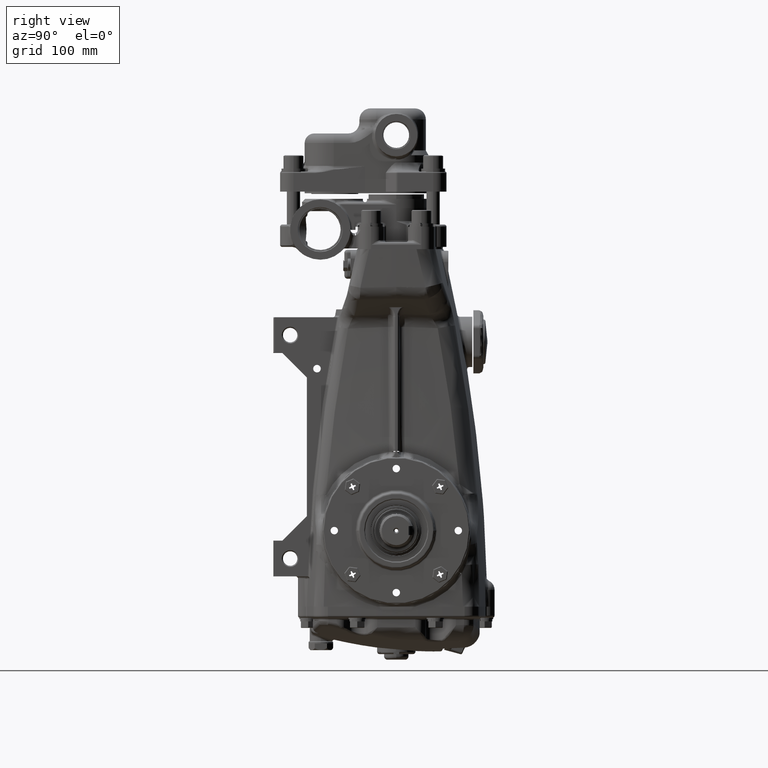
[diagram: clean part render]
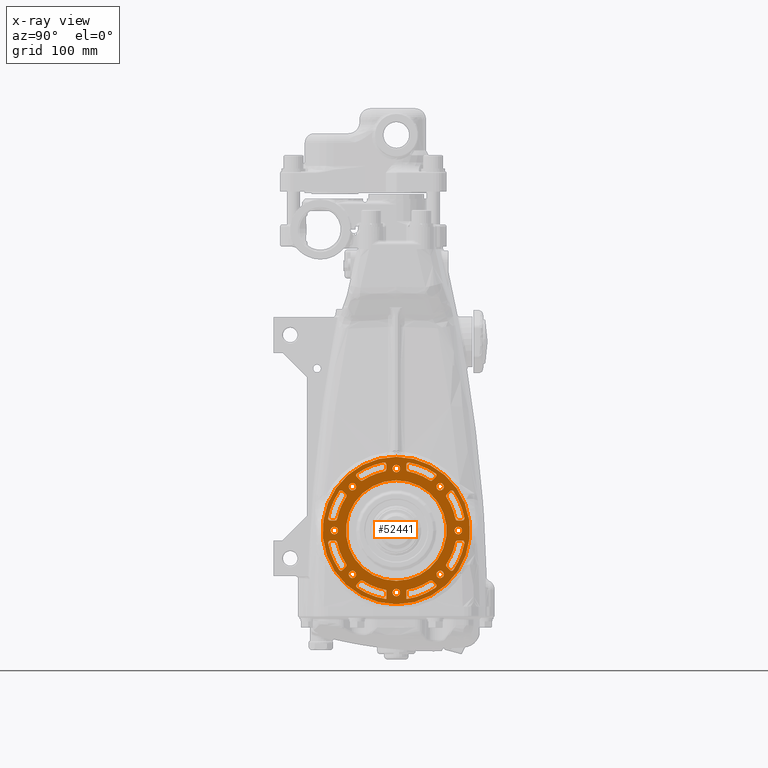
[diagram: x-ray — body ghosted, one internal face saturated and labeled with its STEP entity id]
A machine part, right view, then the same camera in x-ray: the body is ghosted and one INTERNAL B-rep face — a face not visible from any outside direction — is saturated and labeled: STEP entity #52441.
In plain terms, the highlighted planar face has unit normal (1, 0, -0).
Its self-contained STEP definition (entity closure, byte-faithful):
#12 = DIRECTION ( 'NONE',  ( 1.000000000000000000, -0.000000000000000000, 9.899117423955728400E-17 ) ) ;
#23 = DIRECTION ( 'NONE',  ( 0.000000000000000000, -0.7071067811865479058, -0.7071067811865470176 ) ) ;
#32 = EDGE_CURVE ( 'NONE', #109543, #37305, #24876, .T. ) ;
#167 = DIRECTION ( 'NONE',  ( 0.000000000000000000, -5.204170427930416550E-15, -1.000000000000000000 ) ) ;
#215 = VECTOR ( 'NONE', #54547, 39.37007874015748854 ) ;
#721 = ORIENTED_EDGE ( 'NONE', *, *, #32, .T. ) ;
#727 = CIRCLE ( 'NONE', #110268, 1.771653543307086798 ) ;
#1166 = VERTEX_POINT ( 'NONE', #91307 ) ;
#1256 = DIRECTION ( 'NONE',  ( -1.000000000000000000, -0.000000000000000000, -9.899117423955728400E-17 ) ) ;
#1596 = CARTESIAN_POINT ( 'NONE',  ( 4.448818897637796255, 1.545056155742267512, 1.545056155742250636 ) ) ;
#2016 = AXIS2_PLACEMENT_3D ( 'NONE', #105163, #43399, #34272 ) ;
#2068 = EDGE_CURVE ( 'NONE', #66689, #1166, #14310, .T. ) ;
#2490 = VERTEX_POINT ( 'NONE', #65417 ) ;
#2759 = DIRECTION ( 'NONE',  ( 0.000000000000000000, 0.000000000000000000, -1.000000000000000000 ) ) ;
#2987 = AXIS2_PLACEMENT_3D ( 'NONE', #91050, #40661, #12729 ) ;
#3040 = ORIENTED_EDGE ( 'NONE', *, *, #56221, .T. ) ;
#3227 = VERTEX_POINT ( 'NONE', #58942 ) ;
#3236 = ORIENTED_EDGE ( 'NONE', *, *, #108837, .T. ) ;
#3242 = LINE ( 'NONE', #63848, #76802 ) ;
#3276 = CIRCLE ( 'NONE', #68994, 2.125984251968503713 ) ;
#3459 = AXIS2_PLACEMENT_3D ( 'NONE', #67452, #109813, #40572 ) ;
#3550 = CARTESIAN_POINT ( 'NONE',  ( 4.448818897637796255, -2.096248742043170576, 0.3543307086614185808 ) ) ;
#3696 = EDGE_CURVE ( 'NONE', #6234, #31853, #60837, .T. ) ;
#3734 = VERTEX_POINT ( 'NONE', #40141 ) ;
#4074 = VERTEX_POINT ( 'NONE', #89841 ) ;
#4086 = CIRCLE ( 'NONE', #89964, 0.07874015748031502893 ) ;
#4231 = ORIENTED_EDGE ( 'NONE', *, *, #18039, .T. ) ;
#4312 = EDGE_CURVE ( 'NONE', #7281, #70357, #108248, .T. ) ;
#4521 = VERTEX_POINT ( 'NONE', #95364 ) ;
#4562 = CARTESIAN_POINT ( 'NONE',  ( 4.448818897637796255, 1.335792870641475893, 1.948247563007773575 ) ) ;
#4708 = DIRECTION ( 'NONE',  ( 0.000000000000000000, -3.469446951953614189E-15, -1.000000000000000000 ) ) ;
#4740 = CARTESIAN_POINT ( 'NONE',  ( 4.448818897637796255, 0.000000000000000000, 0.000000000000000000 ) ) ;
#5070 = VECTOR ( 'NONE', #105966, 39.37007874015748143 ) ;
#5159 = CARTESIAN_POINT ( 'NONE',  ( 4.448818897637796255, 2.161772269809818514, 0.4330708661417335681 ) ) ;
#5262 = FACE_BOUND ( 'NONE', #90158, .T. ) ;
#5287 = CARTESIAN_POINT ( 'NONE',  ( 4.448818897637796255, -1.834831177546701886, 1.222376485180416417 ) ) ;
#5419 = DIRECTION ( 'NONE',  ( 0.000000000000000000, -3.469446951953617344E-15, -1.000000000000000000 ) ) ;
#5514 = DIRECTION ( 'NONE',  ( 0.000000000000000000, 0.000000000000000000, 1.000000000000000000 ) ) ;
#5537 = ORIENTED_EDGE ( 'NONE', *, *, #67426, .T. ) ;
#5856 = ORIENTED_EDGE ( 'NONE', *, *, #94889, .T. ) ;
#6207 = CIRCLE ( 'NONE', #106653, 0.07874015748031502893 ) ;
#6234 = VERTEX_POINT ( 'NONE', #77175 ) ;
#6511 = DIRECTION ( 'NONE',  ( -1.000000000000000000, -0.000000000000000000, 2.542649619626401295E-33 ) ) ;
#6852 = CARTESIAN_POINT ( 'NONE',  ( 4.448818897637796255, 1.380319299662858157, 2.013189148441365983 ) ) ;
#7034 = ORIENTED_EDGE ( 'NONE', *, *, #92291, .T. ) ;
#7281 = VERTEX_POINT ( 'NONE', #38889 ) ;
#7407 = DIRECTION ( 'NONE',  ( 0.000000000000000000, -0.000000000000000000, -1.000000000000000000 ) ) ;
#7496 = DIRECTION ( 'NONE',  ( -1.000000000000000000, -0.000000000000000000, 2.542649619626401295E-33 ) ) ;
#7705 = CARTESIAN_POINT ( 'NONE',  ( 4.448818897637796255, -1.834831177546705216, -1.222376485180409755 ) ) ;
#8301 = EDGE_CURVE ( 'NONE', #3734, #12363, #71956, .T. ) ;
#8403 = EDGE_LOOP ( 'NONE', ( #20770, #93234 ) ) ;
#8465 = ORIENTED_EDGE ( 'NONE', *, *, #33996, .T. ) ;
#8572 = DIRECTION ( 'NONE',  ( 0.000000000000000000, 0.000000000000000000, 1.000000000000000000 ) ) ;
#8953 = CARTESIAN_POINT ( 'NONE',  ( 4.448818897637796255, 0.000000000000000000, 0.000000000000000000 ) ) ;
#9000 = EDGE_CURVE ( 'NONE', #86611, #50180, #70883, .T. ) ;
#9198 = CARTESIAN_POINT ( 'NONE',  ( 4.448818897637796255, -1.278054184486430822, -1.779153478240682373 ) ) ;
#9356 = VERTEX_POINT ( 'NONE', #77034 ) ;
#9377 = VERTEX_POINT ( 'NONE', #50160 ) ;
#9553 = AXIS2_PLACEMENT_3D ( 'NONE', #34273, #104041, #111494 ) ;
#9787 = CIRCLE ( 'NONE', #64523, 0.07874015748031495954 ) ;
#10145 = CIRCLE ( 'NONE', #95934, 2.440944881889763440 ) ;
#10637 = CARTESIAN_POINT ( 'NONE',  ( 4.448818897637796255, -2.322167260324193627, 0.3543307086614186918 ) ) ;
#10890 = AXIS2_PLACEMENT_3D ( 'NONE', #48946, #76384, #5514 ) ;
#10996 = VERTEX_POINT ( 'NONE', #11100 ) ;
#11088 = CARTESIAN_POINT ( 'NONE',  ( 4.448818897637796255, 0.000000000000000000, -4.975950889780015573E-33 ) ) ;
#11100 = CARTESIAN_POINT ( 'NONE',  ( 4.448818897637796255, 1.545056155742267290, -1.675902612435164141 ) ) ;
#11182 = ORIENTED_EDGE ( 'NONE', *, *, #75502, .T. ) ;
#11308 = CIRCLE ( 'NONE', #35019, 2.125984251968503269 ) ;
#11768 = CIRCLE ( 'NONE', #64691, 0.07874015748031502893 ) ;
#12207 = VERTEX_POINT ( 'NONE', #109255 ) ;
#12363 = VERTEX_POINT ( 'NONE', #106298 ) ;
#12378 = EDGE_LOOP ( 'NONE', ( #11182, #42176 ) ) ;
#12710 = VERTEX_POINT ( 'NONE', #75764 ) ;
#12729 = DIRECTION ( 'NONE',  ( 0.000000000000000000, 0.000000000000000000, 1.000000000000000000 ) ) ;
#13130 = VERTEX_POINT ( 'NONE', #93353 ) ;
#13251 = AXIS2_PLACEMENT_3D ( 'NONE', #75339, #22782, #66766 ) ;
#13322 = DIRECTION ( 'NONE',  ( -1.000000000000000000, -0.000000000000000000, 2.542649619626401295E-33 ) ) ;
#13421 = DIRECTION ( 'NONE',  ( 1.000000000000000000, -0.000000000000000000, -2.542649619626401295E-33 ) ) ;
#13565 = CIRCLE ( 'NONE', #81110, 0.1308464566929133932 ) ;
#13938 = DIRECTION ( 'NONE',  ( 0.000000000000000000, 0.000000000000000000, -1.000000000000000000 ) ) ;
#13966 = VECTOR ( 'NONE', #97763, 39.37007874015748854 ) ;
#14101 = CARTESIAN_POINT ( 'NONE',  ( 4.448818897637796255, -2.161772269809818070, -0.4330708661417315697 ) ) ;
#14244 = EDGE_CURVE ( 'NONE', #93493, #32721, #104492, .T. ) ;
#14310 = CIRCLE ( 'NONE', #30671, 0.07874015748031502893 ) ;
#14730 = EDGE_CURVE ( 'NONE', #110002, #86611, #110660, .T. ) ;
#14923 = VERTEX_POINT ( 'NONE', #76886 ) ;
#14937 = CARTESIAN_POINT ( 'NONE',  ( 4.448818897637796255, 1.948247563007776906, 1.335792870641471231 ) ) ;
#15344 = CARTESIAN_POINT ( 'NONE',  ( 4.448818897637796255, 0.000000000000000000, 2.315885826771653999 ) ) ;
#15936 = ORIENTED_EDGE ( 'NONE', *, *, #32976, .T. ) ;
#16445 = DIRECTION ( 'NONE',  ( -1.000000000000000000, -0.000000000000000000, 2.542649619626401295E-33 ) ) ;
#16446 = DIRECTION ( 'NONE',  ( 0.000000000000000000, -0.000000000000000000, -1.000000000000000000 ) ) ;
#16630 = CARTESIAN_POINT ( 'NONE',  ( 4.448818897637796255, 2.013189148441373977, -1.380319299662845056 ) ) ;
#16963 = EDGE_CURVE ( 'NONE', #18414, #13130, #33039, .T. ) ;
#17332 = CARTESIAN_POINT ( 'NONE',  ( 4.448818897637796255, -1.545056155742268178, -1.545056155742250192 ) ) ;
#17342 = DIRECTION ( 'NONE',  ( -1.000000000000000000, -0.000000000000000000, -9.899117423955728400E-17 ) ) ;
#17381 = LINE ( 'NONE', #97366, #82208 ) ;
#17384 = CIRCLE ( 'NONE', #33748, 0.07874015748031502893 ) ;
#17419 = DIRECTION ( 'NONE',  ( 0.000000000000000000, 0.000000000000000000, -1.000000000000000000 ) ) ;
#17877 = EDGE_CURVE ( 'NONE', #24424, #111568, #108189, .T. ) ;
#18039 = EDGE_CURVE ( 'NONE', #76089, #56975, #93422, .T. ) ;
#18096 = CARTESIAN_POINT ( 'NONE',  ( 4.448818897637796255, -1.545056155742266846, 1.545056155742252191 ) ) ;
#18414 = VERTEX_POINT ( 'NONE', #52670 ) ;
#19457 = AXIS2_PLACEMENT_3D ( 'NONE', #42533, #32837, #77423 ) ;
#19572 = ORIENTED_EDGE ( 'NONE', *, *, #62007, .T. ) ;
#19828 = DIRECTION ( 'NONE',  ( -1.000000000000000000, -0.000000000000000000, 2.542649619626401295E-33 ) ) ;
#20358 = DIRECTION ( 'NONE',  ( 0.000000000000000000, -3.469446951953611428E-15, -1.000000000000000000 ) ) ;
#20451 = CARTESIAN_POINT ( 'NONE',  ( 4.448818897637796255, -1.178720182138238926, 1.769301492634332673 ) ) ;
#20770 = ORIENTED_EDGE ( 'NONE', *, *, #112071, .T. ) ;
#20827 = LINE ( 'NONE', #98570, #215 ) ;
#20914 = CARTESIAN_POINT ( 'NONE',  ( 4.448818897637796255, 1.178720182138256911, -1.769301492634320017 ) ) ;
#20971 = VECTOR ( 'NONE', #43926, 39.37007874015748854 ) ;
#21096 = ORIENTED_EDGE ( 'NONE', *, *, #38350, .T. ) ;
#21211 = VERTEX_POINT ( 'NONE', #20914 ) ;
#21213 = CARTESIAN_POINT ( 'NONE',  ( 4.448818897637796255, 0.000000000000000000, 0.000000000000000000 ) ) ;
#21545 = DIRECTION ( 'NONE',  ( 0.000000000000000000, 0.7071067811865509034, -0.7071067811865440200 ) ) ;
#21674 = EDGE_CURVE ( 'NONE', #14923, #109757, #85189, .T. ) ;
#21720 = EDGE_CURVE ( 'NONE', #4074, #76522, #110836, .T. ) ;
#21782 = AXIS2_PLACEMENT_3D ( 'NONE', #113074, #105059, #69592 ) ;
#21823 = CARTESIAN_POINT ( 'NONE',  ( 4.448818897637796255, 1.732821347429621683, 1.231722053675370576 ) ) ;
#22426 = FACE_BOUND ( 'NONE', #35329, .T. ) ;
#22437 = DIRECTION ( 'NONE',  ( -1.000000000000000000, -0.000000000000000000, 2.542649619626401295E-33 ) ) ;
#22505 = CIRCLE ( 'NONE', #101030, 0.07874015748031502893 ) ;
#22782 = DIRECTION ( 'NONE',  ( -1.000000000000000000, -0.000000000000000000, 2.542649619626401295E-33 ) ) ;
#22992 = FACE_BOUND ( 'NONE', #36088, .T. ) ;
#23080 = DIRECTION ( 'NONE',  ( 0.000000000000000000, -2.142009898075826297E-16, 1.000000000000000000 ) ) ;
#23274 = DIRECTION ( 'NONE',  ( -1.000000000000000000, -0.000000000000000000, 2.542649619626401295E-33 ) ) ;
#23307 = CARTESIAN_POINT ( 'NONE',  ( 4.448818897637796255, 1.892569863701754285, -1.391470569947490743 ) ) ;
#23549 = FACE_BOUND ( 'NONE', #12378, .T. ) ;
#23666 = CARTESIAN_POINT ( 'NONE',  ( 4.448818897637796255, 0.000000000000000000, -4.975950889780015573E-33 ) ) ;
#23848 = VERTEX_POINT ( 'NONE', #100021 ) ;
#23938 = VERTEX_POINT ( 'NONE', #65673 ) ;
#24067 = CIRCLE ( 'NONE', #27703, 2.125984251968504157 ) ;
#24105 = CARTESIAN_POINT ( 'NONE',  ( 4.448818897637796255, 2.161772269809818070, -0.4330708661417315697 ) ) ;
#24162 = VERTEX_POINT ( 'NONE', #45003 ) ;
#24414 = VERTEX_POINT ( 'NONE', #107905 ) ;
#24424 = VERTEX_POINT ( 'NONE', #71872 ) ;
#24531 = CARTESIAN_POINT ( 'NONE',  ( 4.448818897637796255, 2.084566117316610345, -0.4176040494938125791 ) ) ;
#24682 = FACE_OUTER_BOUND ( 'NONE', #57287, .T. ) ;
#24760 = VERTEX_POINT ( 'NONE', #108897 ) ;
#24793 = CARTESIAN_POINT ( 'NONE',  ( 4.448818897637796255, 1.545056155742267512, 1.414209699049337354 ) ) ;
#24876 = CIRCLE ( 'NONE', #2987, 2.440944881889763884 ) ;
#25082 = VECTOR ( 'NONE', #29801, 39.37007874015748854 ) ;
#25347 = ORIENTED_EDGE ( 'NONE', *, *, #53187, .T. ) ;
#25568 = VERTEX_POINT ( 'NONE', #65453 ) ;
#25771 = EDGE_CURVE ( 'NONE', #56975, #76089, #98243, .T. ) ;
#26308 = CARTESIAN_POINT ( 'NONE',  ( 4.448818897637796255, 2.322167260324193183, -0.3543307086614165824 ) ) ;
#26544 = DIRECTION ( 'NONE',  ( 0.000000000000000000, 0.000000000000000000, 1.000000000000000000 ) ) ;
#26633 = DIRECTION ( 'NONE',  ( 0.000000000000000000, 0.000000000000000000, 1.000000000000000000 ) ) ;
#26677 = ORIENTED_EDGE ( 'NONE', *, *, #103350, .T. ) ;
#26769 = VERTEX_POINT ( 'NONE', #15344 ) ;
#26775 = DIRECTION ( 'NONE',  ( 1.000000000000000000, -0.000000000000000000, 9.899117423955728400E-17 ) ) ;
#26793 = DIRECTION ( 'NONE',  ( -1.000000000000000000, -0.000000000000000000, 2.542649619626401295E-33 ) ) ;
#26840 = EDGE_CURVE ( 'NONE', #74251, #93575, #91133, .T. ) ;
#26974 = VERTEX_POINT ( 'NONE', #61593 ) ;
#26986 = DIRECTION ( 'NONE',  ( -1.000000000000000000, -0.000000000000000000, 2.542649619626401295E-33 ) ) ;
#27118 = DIRECTION ( 'NONE',  ( 1.000000000000000000, -0.000000000000000000, 9.899117423955728400E-17 ) ) ;
#27252 = ORIENTED_EDGE ( 'NONE', *, *, #63721, .T. ) ;
#27366 = AXIS2_PLACEMENT_3D ( 'NONE', #84169, #57857, #50421 ) ;
#27454 = VERTEX_POINT ( 'NONE', #108706 ) ;
#27502 = VERTEX_POINT ( 'NONE', #16630 ) ;
#27674 = CARTESIAN_POINT ( 'NONE',  ( 4.448818897637796255, -2.322167260324193627, 0.4330708661417335681 ) ) ;
#27703 = AXIS2_PLACEMENT_3D ( 'NONE', #70563, #27118, #95223 ) ;
#27829 = CARTESIAN_POINT ( 'NONE',  ( 4.448818897637796255, 0.000000000000000000, 1.771653543307086798 ) ) ;
#28515 = DIRECTION ( 'NONE',  ( 0.000000000000000000, 0.000000000000000000, 1.000000000000000000 ) ) ;
#28906 = DIRECTION ( 'NONE',  ( -1.000000000000000000, -0.000000000000000000, 2.542649619626401295E-33 ) ) ;
#29101 = CARTESIAN_POINT ( 'NONE',  ( 4.448818897637796255, -0.3543307086614173040, -2.415090405207086288 ) ) ;
#29146 = CIRCLE ( 'NONE', #10890, 2.125984251968504157 ) ;
#29343 = EDGE_CURVE ( 'NONE', #62158, #70598, #39393, .T. ) ;
#29605 = AXIS2_PLACEMENT_3D ( 'NONE', #98175, #35854, #78755 ) ;
#29717 = DIRECTION ( 'NONE',  ( -1.000000000000000000, -0.000000000000000000, 2.542649619626401295E-33 ) ) ;
#29787 = EDGE_CURVE ( 'NONE', #99311, #39419, #68732, .T. ) ;
#29801 = DIRECTION ( 'NONE',  ( 0.000000000000000000, 0.7071067811865465735, 0.7071067811865483499 ) ) ;
#30426 = DIRECTION ( 'NONE',  ( 0.000000000000000000, 0.000000000000000000, 1.000000000000000000 ) ) ;
#30531 = ORIENTED_EDGE ( 'NONE', *, *, #102825, .T. ) ;
#30671 = AXIS2_PLACEMENT_3D ( 'NONE', #38680, #23274, #93019 ) ;
#30868 = DIRECTION ( 'NONE',  ( -1.000000000000000000, -0.000000000000000000, -9.899117423955728400E-17 ) ) ;
#30879 = DIRECTION ( 'NONE',  ( -1.000000000000000000, -0.000000000000000000, -9.899117423955728400E-17 ) ) ;
#30990 = VERTEX_POINT ( 'NONE', #59512 ) ;
#31078 = CARTESIAN_POINT ( 'NONE',  ( 4.448818897637796255, 1.948247563007781569, -1.335792870641463015 ) ) ;
#31144 = AXIS2_PLACEMENT_3D ( 'NONE', #61694, #96584, #8572 ) ;
#31147 = VERTEX_POINT ( 'NONE', #26308 ) ;
#31400 = CARTESIAN_POINT ( 'NONE',  ( 4.448818897637796255, 2.185039370078740273, 3.577780186915982985E-67 ) ) ;
#31438 = DIRECTION ( 'NONE',  ( -1.000000000000000000, -0.000000000000000000, 2.542649619626401295E-33 ) ) ;
#31543 = FACE_BOUND ( 'NONE', #35872, .T. ) ;
#31572 = CARTESIAN_POINT ( 'NONE',  ( 4.448818897637796255, 0.000000000000000000, -2.185039370078739829 ) ) ;
#31648 = CARTESIAN_POINT ( 'NONE',  ( 4.448818897637796255, -2.399572835668333237, 0.4475065616797913037 ) ) ;
#31666 = ORIENTED_EDGE ( 'NONE', *, *, #55564, .T. ) ;
#31726 = CIRCLE ( 'NONE', #110266, 0.1308464566929133932 ) ;
#31837 = CARTESIAN_POINT ( 'NONE',  ( 4.448818897637796255, 0.4176040494938132452, 2.084566117316610789 ) ) ;
#31853 = VERTEX_POINT ( 'NONE', #41214 ) ;
#32058 = CARTESIAN_POINT ( 'NONE',  ( 4.448818897637796255, 2.415090405207086732, -0.3543307086614165824 ) ) ;
#32193 = DIRECTION ( 'NONE',  ( -1.000000000000000000, -0.000000000000000000, 2.542649619626401295E-33 ) ) ;
#32395 = ORIENTED_EDGE ( 'NONE', *, *, #59309, .T. ) ;
#32595 = AXIS2_PLACEMENT_3D ( 'NONE', #31400, #101168, #101738 ) ;
#32667 = CIRCLE ( 'NONE', #87460, 2.125984251968504157 ) ;
#32691 = CARTESIAN_POINT ( 'NONE',  ( 4.448818897637796255, 0.000000000000000000, 2.185039370078740717 ) ) ;
#32721 = VERTEX_POINT ( 'NONE', #92465 ) ;
#32837 = DIRECTION ( 'NONE',  ( -1.000000000000000000, -0.000000000000000000, 2.542649619626401295E-33 ) ) ;
#32857 = VERTEX_POINT ( 'NONE', #48673 ) ;
#32966 = DIRECTION ( 'NONE',  ( 0.000000000000000000, 0.000000000000000000, 1.000000000000000000 ) ) ;
#32976 = EDGE_CURVE ( 'NONE', #47259, #37577, #9787, .T. ) ;
#33039 = CIRCLE ( 'NONE', #31144, 2.440944881889763884 ) ;
#33090 = CARTESIAN_POINT ( 'NONE',  ( 4.448818897637796255, 1.545056155742267512, 1.675902612435164141 ) ) ;
#33309 = EDGE_CURVE ( 'NONE', #63649, #9356, #22505, .T. ) ;
#33557 = CARTESIAN_POINT ( 'NONE',  ( 4.448818897637796255, -0.3543307086614173040, -2.415090405207086288 ) ) ;
#33748 = AXIS2_PLACEMENT_3D ( 'NONE', #54636, #28906, #20358 ) ;
#33806 = DIRECTION ( 'NONE',  ( 1.000000000000000000, 0.000000000000000000, -2.542649619626400953E-33 ) ) ;
#33940 = ORIENTED_EDGE ( 'NONE', *, *, #69436, .T. ) ;
#33996 = EDGE_CURVE ( 'NONE', #24760, #61619, #46377, .T. ) ;
#34031 = CARTESIAN_POINT ( 'NONE',  ( 4.448818897637796255, 2.161772269809818070, -0.3543307086614166379 ) ) ;
#34272 = DIRECTION ( 'NONE',  ( 0.000000000000000000, 0.000000000000000000, 1.000000000000000000 ) ) ;
#34273 = CARTESIAN_POINT ( 'NONE',  ( 4.448818897637796255, -1.222376485180403316, -1.834831177546709879 ) ) ;
#34418 = ORIENTED_EDGE ( 'NONE', *, *, #78047, .T. ) ;
#34723 = ORIENTED_EDGE ( 'NONE', *, *, #16963, .T. ) ;
#34863 = ORIENTED_EDGE ( 'NONE', *, *, #67386, .T. ) ;
#35019 = AXIS2_PLACEMENT_3D ( 'NONE', #105450, #69987, #26544 ) ;
#35274 = AXIS2_PLACEMENT_3D ( 'NONE', #11088, #45918, #37327 ) ;
#35329 = EDGE_LOOP ( 'NONE', ( #42561, #92674, #104823, #50716, #31666, #91518, #97276, #70047 ) ) ;
#35491 = CARTESIAN_POINT ( 'NONE',  ( 4.448818897637796255, -2.084566117316609901, -0.4176040494938145775 ) ) ;
#35635 = CARTESIAN_POINT ( 'NONE',  ( 4.448818897637796255, -1.948247563007768690, 1.335792870641482999 ) ) ;
#35854 = DIRECTION ( 'NONE',  ( -1.000000000000000000, -0.000000000000000000, 2.542649619626401295E-33 ) ) ;
#35872 = EDGE_LOOP ( 'NONE', ( #79866, #3236, #721, #33940, #44074, #34418, #82196, #55383 ) ) ;
#35909 = DIRECTION ( 'NONE',  ( 0.000000000000000000, 0.000000000000000000, 1.000000000000000000 ) ) ;
#36031 = CARTESIAN_POINT ( 'NONE',  ( 4.448818897637796255, 1.602406943687490315E-17, -2.315885826771653111 ) ) ;
#36088 = EDGE_LOOP ( 'NONE', ( #45039, #62288 ) ) ;
#36120 = CARTESIAN_POINT ( 'NONE',  ( 4.448818897637796255, 1.222376485180416417, -1.834831177546701220 ) ) ;
#36296 = EDGE_CURVE ( 'NONE', #56385, #63649, #59439, .T. ) ;
#36488 = EDGE_CURVE ( 'NONE', #3227, #74859, #10145, .T. ) ;
#36791 = LINE ( 'NONE', #81978, #58761 ) ;
#37117 = VERTEX_POINT ( 'NONE', #27829 ) ;
#37210 = CARTESIAN_POINT ( 'NONE',  ( 4.448818897637796255, 1.834831177546714320, -1.222376485180397099 ) ) ;
#37305 = VERTEX_POINT ( 'NONE', #81552 ) ;
#37327 = DIRECTION ( 'NONE',  ( 0.000000000000000000, 0.000000000000000000, -1.000000000000000000 ) ) ;
#37381 = EDGE_LOOP ( 'NONE', ( #21096, #103460, #34863, #41682, #5856, #26677, #27252, #80934 ) ) ;
#37577 = VERTEX_POINT ( 'NONE', #34031 ) ;
#37646 = ORIENTED_EDGE ( 'NONE', *, *, #64605, .T. ) ;
#38350 = EDGE_CURVE ( 'NONE', #63229, #110008, #81146, .T. ) ;
#38428 = DIRECTION ( 'NONE',  ( -1.000000000000000000, -0.000000000000000000, -9.899117423955728400E-17 ) ) ;
#38652 = ORIENTED_EDGE ( 'NONE', *, *, #100736, .T. ) ;
#38680 = CARTESIAN_POINT ( 'NONE',  ( 4.448818897637796255, 0.4330708661417322913, 2.161772269809818514 ) ) ;
#38739 = AXIS2_PLACEMENT_3D ( 'NONE', #53101, #26793, #2759 ) ;
#38874 = CARTESIAN_POINT ( 'NONE',  ( 4.448818897637796255, 0.000000000000000000, 0.000000000000000000 ) ) ;
#38889 = CARTESIAN_POINT ( 'NONE',  ( 4.448818897637796255, 1.278054184486436373, 1.779153478240679265 ) ) ;
#38972 = CARTESIAN_POINT ( 'NONE',  ( 4.448818897637796255, -2.161772269809818070, 0.4330708661417335681 ) ) ;
#39079 = CARTESIAN_POINT ( 'NONE',  ( 4.448818897637796255, 1.892569863701749178, 1.391470569947498737 ) ) ;
#39393 = CIRCLE ( 'NONE', #70421, 2.440944881889762996 ) ;
#39419 = VERTEX_POINT ( 'NONE', #78208 ) ;
#39979 = CARTESIAN_POINT ( 'NONE',  ( 4.448818897637796255, 0.000000000000000000, 0.000000000000000000 ) ) ;
#40141 = CARTESIAN_POINT ( 'NONE',  ( 4.448818897637796255, -1.545056155742268178, -1.414209699049336688 ) ) ;
#40328 = DIRECTION ( 'NONE',  ( -1.000000000000000000, -0.000000000000000000, 2.542649619626401295E-33 ) ) ;
#40399 = VECTOR ( 'NONE', #66357, 39.37007874015748143 ) ;
#40572 = DIRECTION ( 'NONE',  ( 0.000000000000000000, 0.000000000000000000, 1.000000000000000000 ) ) ;
#40661 = DIRECTION ( 'NONE',  ( -1.000000000000000000, -0.000000000000000000, -9.899117423955728400E-17 ) ) ;
#40665 = FACE_BOUND ( 'NONE', #58061, .T. ) ;
#40690 = DIRECTION ( 'NONE',  ( 0.000000000000000000, 0.000000000000000000, 1.000000000000000000 ) ) ;
#40820 = DIRECTION ( 'NONE',  ( -1.000000000000000000, -0.000000000000000000, 2.542649619626401295E-33 ) ) ;
#41023 = VERTEX_POINT ( 'NONE', #39079 ) ;
#41123 = CARTESIAN_POINT ( 'NONE',  ( 4.448818897637796255, -0.4475065616797899715, 2.399572835668333681 ) ) ;
#41214 = CARTESIAN_POINT ( 'NONE',  ( 4.448818897637796255, 2.168196436623980539, -1.432039704700285965 ) ) ;
#41444 = DIRECTION ( 'NONE',  ( -1.000000000000000000, -0.000000000000000000, 2.542649619626401295E-33 ) ) ;
#41619 = CIRCLE ( 'NONE', #67166, 0.07874015748031502893 ) ;
#41682 = ORIENTED_EDGE ( 'NONE', *, *, #29787, .T. ) ;
#41737 = DIRECTION ( 'NONE',  ( 0.000000000000000000, 0.000000000000000000, 1.000000000000000000 ) ) ;
#41844 = ORIENTED_EDGE ( 'NONE', *, *, #82744, .T. ) ;
#42132 = EDGE_CURVE ( 'NONE', #70598, #4521, #89558, .T. ) ;
#42176 = ORIENTED_EDGE ( 'NONE', *, *, #21674, .T. ) ;
#42374 = FACE_BOUND ( 'NONE', #64047, .T. ) ;
#42453 = CARTESIAN_POINT ( 'NONE',  ( 4.448818897637796255, 2.185039370078740273, 3.577780186915982985E-67 ) ) ;
#42533 = CARTESIAN_POINT ( 'NONE',  ( 4.448818897637796255, -0.4330708661417322913, 2.322167260324193627 ) ) ;
#42561 = ORIENTED_EDGE ( 'NONE', *, *, #14730, .T. ) ;
#42644 = EDGE_CURVE ( 'NONE', #82003, #63189, #3242, .T. ) ;
#42712 = CARTESIAN_POINT ( 'NONE',  ( 4.448818897637796255, 1.335792870641483443, -1.948247563007767136 ) ) ;
#42805 = CARTESIAN_POINT ( 'NONE',  ( 4.448818897637796255, -0.3543307086614173040, 2.096248742043171021 ) ) ;
#42824 = EDGE_LOOP ( 'NONE', ( #103184, #100921, #96791, #86103, #105120, #97316 ) ) ;
#43228 = DIRECTION ( 'NONE',  ( 1.000000000000000000, -0.000000000000000000, 9.899117423955728400E-17 ) ) ;
#43303 = AXIS2_PLACEMENT_3D ( 'NONE', #81680, #73089, #28515 ) ;
#43319 = CARTESIAN_POINT ( 'NONE',  ( 4.448818897637796255, 0.000000000000000000, 0.000000000000000000 ) ) ;
#43399 = DIRECTION ( 'NONE',  ( -1.000000000000000000, -0.000000000000000000, -9.899117423955728400E-17 ) ) ;
#43442 = LINE ( 'NONE', #43984, #68767 ) ;
#43859 = EDGE_CURVE ( 'NONE', #50180, #24162, #29146, .T. ) ;
#43926 = DIRECTION ( 'NONE',  ( 0.000000000000000000, -0.7071067811865513475, 0.7071067811865435759 ) ) ;
#43984 = CARTESIAN_POINT ( 'NONE',  ( 4.448818897637796255, 1.231722053675375461, 1.732821347429618353 ) ) ;
#44074 = ORIENTED_EDGE ( 'NONE', *, *, #80048, .T. ) ;
#44188 = LINE ( 'NONE', #79641, #5070 ) ;
#44212 = DIRECTION ( 'NONE',  ( 0.000000000000000000, 0.000000000000000000, 1.000000000000000000 ) ) ;
#44826 = CARTESIAN_POINT ( 'NONE',  ( 4.448818897637796255, -2.161772269809818070, -0.3543307086614166379 ) ) ;
#45003 = CARTESIAN_POINT ( 'NONE',  ( 4.448818897637796255, 1.769301492634327566, 1.178720182138246919 ) ) ;
#45039 = ORIENTED_EDGE ( 'NONE', *, *, #99404, .T. ) ;
#45217 = CARTESIAN_POINT ( 'NONE',  ( 4.448818897637796255, 0.3543307086614173040, -2.415090405207086288 ) ) ;
#45290 = EDGE_CURVE ( 'NONE', #1166, #25568, #17381, .T. ) ;
#45744 = ORIENTED_EDGE ( 'NONE', *, *, #100600, .T. ) ;
#45770 = CIRCLE ( 'NONE', #85956, 0.07874015748031495954 ) ;
#45918 = DIRECTION ( 'NONE',  ( 1.000000000000000000, -0.000000000000000000, -2.542649619626401295E-33 ) ) ;
#45938 = DIRECTION ( 'NONE',  ( 0.000000000000000000, 0.000000000000000000, -1.000000000000000000 ) ) ;
#45961 = ORIENTED_EDGE ( 'NONE', *, *, #84282, .T. ) ;
#46072 = VERTEX_POINT ( 'NONE', #20451 ) ;
#46312 = DIRECTION ( 'NONE',  ( 0.000000000000000000, 0.000000000000000000, 1.000000000000000000 ) ) ;
#46377 = CIRCLE ( 'NONE', #112150, 0.07874015748031489015 ) ;
#46537 = CARTESIAN_POINT ( 'NONE',  ( 4.448818897637796255, 0.000000000000000000, -2.185039370078739829 ) ) ;
#47103 = EDGE_CURVE ( 'NONE', #26974, #24414, #81874, .T. ) ;
#47259 = VERTEX_POINT ( 'NONE', #24531 ) ;
#47325 = VERTEX_POINT ( 'NONE', #81612 ) ;
#47442 = CARTESIAN_POINT ( 'NONE',  ( 4.448818897637796255, -2.084566117316610789, 0.4176040494938145775 ) ) ;
#47838 = ORIENTED_EDGE ( 'NONE', *, *, #42132, .T. ) ;
#47904 = CIRCLE ( 'NONE', #38739, 0.07874015748031502893 ) ;
#48069 = LINE ( 'NONE', #32058, #40399 ) ;
#48526 = CARTESIAN_POINT ( 'NONE',  ( 4.448818897637796255, 1.278054184486443701, -1.779153478240673492 ) ) ;
#48673 = CARTESIAN_POINT ( 'NONE',  ( 4.448818897637796255, -1.892569863701741184, 1.391470569947510727 ) ) ;
#48777 = CIRCLE ( 'NONE', #68896, 2.125984251968503713 ) ;
#48880 = DIRECTION ( 'NONE',  ( -0.000000000000000000, -1.000000000000000000, -2.142009898075822845E-16 ) ) ;
#48946 = CARTESIAN_POINT ( 'NONE',  ( 4.448818897637796255, 0.000000000000000000, 0.000000000000000000 ) ) ;
#49130 = CARTESIAN_POINT ( 'NONE',  ( 4.448818897637796255, 0.000000000000000000, 0.000000000000000000 ) ) ;
#49255 = DIRECTION ( 'NONE',  ( -1.000000000000000000, -0.000000000000000000, 2.542649619626401295E-33 ) ) ;
#49357 = AXIS2_PLACEMENT_3D ( 'NONE', #66417, #49255, #92745 ) ;
#49684 = VECTOR ( 'NONE', #48880, 39.37007874015748143 ) ;
#49836 = FACE_BOUND ( 'NONE', #96919, .T. ) ;
#50160 = CARTESIAN_POINT ( 'NONE',  ( 4.448818897637796255, -1.380319299662845056, 2.013189148441374865 ) ) ;
#50180 = VERTEX_POINT ( 'NONE', #111483 ) ;
#50317 = VERTEX_POINT ( 'NONE', #70798 ) ;
#50332 = EDGE_CURVE ( 'NONE', #69845, #12207, #54211, .T. ) ;
#50402 = CIRCLE ( 'NONE', #77826, 0.07874015748031495954 ) ;
#50421 = DIRECTION ( 'NONE',  ( 0.000000000000000000, 0.000000000000000000, 1.000000000000000000 ) ) ;
#50598 = EDGE_CURVE ( 'NONE', #46072, #63229, #17384, .T. ) ;
#50716 = ORIENTED_EDGE ( 'NONE', *, *, #101471, .T. ) ;
#51992 = CARTESIAN_POINT ( 'NONE',  ( 4.448818897637796255, 1.958276449577628586, -1.457177155823364378 ) ) ;
#52041 = CARTESIAN_POINT ( 'NONE',  ( 4.448818897637796255, 0.000000000000000000, 0.000000000000000000 ) ) ;
#52229 = DIRECTION ( 'NONE',  ( 0.000000000000000000, 0.000000000000000000, 1.000000000000000000 ) ) ;
#52288 = AXIS2_PLACEMENT_3D ( 'NONE', #87409, #96558, #35909 ) ;
#52434 = CIRCLE ( 'NONE', #90782, 0.07874015748031495954 ) ;
#52441 = ADVANCED_FACE ( 'NONE', ( #22992, #84159, #57275, #5262, #76694, #103017, #42374, #23549, #93296, #57845, #112177, #31543, #22426, #40665, #49836, #84727, #76136, #24682 ), #75563, .T. ) ;
#52492 = VERTEX_POINT ( 'NONE', #35491 ) ;
#52670 = CARTESIAN_POINT ( 'NONE',  ( 4.448818897637796255, -2.013189148441364651, -1.380319299662859267 ) ) ;
#52910 = DIRECTION ( 'NONE',  ( -1.000000000000000000, -0.000000000000000000, 2.542649619626401295E-33 ) ) ;
#53101 = CARTESIAN_POINT ( 'NONE',  ( 4.448818897637796255, -1.335792870641462793, 1.948247563007782457 ) ) ;
#53187 = EDGE_CURVE ( 'NONE', #86983, #18414, #6207, .T. ) ;
#53697 = EDGE_CURVE ( 'NONE', #37117, #12710, #727, .T. ) ;
#53814 = DIRECTION ( 'NONE',  ( 0.000000000000000000, 0.000000000000000000, 1.000000000000000000 ) ) ;
#53990 = DIRECTION ( 'NONE',  ( 1.000000000000000000, -0.000000000000000000, 9.899117423955728400E-17 ) ) ;
#54211 = LINE ( 'NONE', #51992, #20971 ) ;
#54303 = AXIS2_PLACEMENT_3D ( 'NONE', #79513, #90942, #90379 ) ;
#54547 = DIRECTION ( 'NONE',  ( 0.000000000000000000, 0.7071067811865474617, -0.7071067811865474617 ) ) ;
#54636 = CARTESIAN_POINT ( 'NONE',  ( 4.448818897637796255, -1.222376485180395989, 1.834831177546715653 ) ) ;
#54962 = DIRECTION ( 'NONE',  ( -1.000000000000000000, -0.000000000000000000, 2.542649619626401295E-33 ) ) ;
#55383 = ORIENTED_EDGE ( 'NONE', *, *, #67336, .T. ) ;
#55530 = DIRECTION ( 'NONE',  ( 0.000000000000000000, 0.000000000000000000, -1.000000000000000000 ) ) ;
#55564 = EDGE_CURVE ( 'NONE', #47325, #41023, #108727, .T. ) ;
#55910 = AXIS2_PLACEMENT_3D ( 'NONE', #31078, #6511, #56826 ) ;
#56221 = EDGE_CURVE ( 'NONE', #27502, #69845, #57701, .T. ) ;
#56385 = VERTEX_POINT ( 'NONE', #72717 ) ;
#56436 = CIRCLE ( 'NONE', #63697, 0.07874015748031489015 ) ;
#56552 = CARTESIAN_POINT ( 'NONE',  ( 4.448818897637796255, -0.3543307086614173040, 2.161772269809818514 ) ) ;
#56788 = CIRCLE ( 'NONE', #2016, 0.1308464566929133932 ) ;
#56826 = DIRECTION ( 'NONE',  ( 0.000000000000000000, -6.938893903907222856E-15, -1.000000000000000000 ) ) ;
#56975 = VERTEX_POINT ( 'NONE', #33090 ) ;
#57275 = FACE_BOUND ( 'NONE', #99325, .T. ) ;
#57287 = EDGE_LOOP ( 'NONE', ( #103404, #69760 ) ) ;
#57475 = CARTESIAN_POINT ( 'NONE',  ( 4.448818897637796255, 2.013189148441369092, 1.380319299662853272 ) ) ;
#57485 = EDGE_LOOP ( 'NONE', ( #106407, #83069, #88404, #3040, #108162, #45961, #58239, #15936 ) ) ;
#57701 = CIRCLE ( 'NONE', #55910, 0.07874015748031502893 ) ;
#57743 = VECTOR ( 'NONE', #100670, 39.37007874015748854 ) ;
#57845 = FACE_BOUND ( 'NONE', #66282, .T. ) ;
#57857 = DIRECTION ( 'NONE',  ( -1.000000000000000000, -0.000000000000000000, -9.899117423955728400E-17 ) ) ;
#57871 = DIRECTION ( 'NONE',  ( -1.000000000000000000, -0.000000000000000000, -9.899117423955728400E-17 ) ) ;
#58061 = EDGE_LOOP ( 'NONE', ( #38652, #25347, #34723, #69216, #100911, #7034, #67392, #8465 ) ) ;
#58188 = EDGE_CURVE ( 'NONE', #23848, #62357, #94439, .T. ) ;
#58229 = EDGE_CURVE ( 'NONE', #52492, #24760, #48777, .T. ) ;
#58239 = ORIENTED_EDGE ( 'NONE', *, *, #90893, .T. ) ;
#58330 = CARTESIAN_POINT ( 'NONE',  ( 4.448818897637796255, -1.457177155823371262, -1.958276449577623035 ) ) ;
#58761 = VECTOR ( 'NONE', #91130, 39.37007874015748143 ) ;
#58788 = EDGE_CURVE ( 'NONE', #30990, #84969, #44188, .T. ) ;
#58816 = EDGE_LOOP ( 'NONE', ( #80405, #30531 ) ) ;
#58942 = CARTESIAN_POINT ( 'NONE',  ( 4.448818897637796255, 1.380319299662866372, -2.013189148441359322 ) ) ;
#59309 = EDGE_CURVE ( 'NONE', #12710, #37117, #103536, .T. ) ;
#59419 = LINE ( 'NONE', #42805, #89295 ) ;
#59439 = CIRCLE ( 'NONE', #79478, 2.440944881889764329 ) ;
#59512 = CARTESIAN_POINT ( 'NONE',  ( 4.448818897637796255, -2.322167260324193183, -0.3543307086614165824 ) ) ;
#59872 = ORIENTED_EDGE ( 'NONE', *, *, #29343, .T. ) ;
#59939 = DIRECTION ( 'NONE',  ( 0.000000000000000000, 0.000000000000000000, 1.000000000000000000 ) ) ;
#60290 = ORIENTED_EDGE ( 'NONE', *, *, #36296, .T. ) ;
#60319 = DIRECTION ( 'NONE',  ( 0.000000000000000000, 0.000000000000000000, -1.000000000000000000 ) ) ;
#60450 = CIRCLE ( 'NONE', #75003, 0.07874015748031502893 ) ;
#60584 = CIRCLE ( 'NONE', #75152, 0.07874015748031495954 ) ;
#60667 = DIRECTION ( 'NONE',  ( 0.000000000000000000, 0.000000000000000000, 1.000000000000000000 ) ) ;
#60837 = CIRCLE ( 'NONE', #35274, 2.598425196850393970 ) ;
#60881 = CARTESIAN_POINT ( 'NONE',  ( 4.448818897637796255, 2.322167260324193183, -0.4330708661417315697 ) ) ;
#60919 = DIRECTION ( 'NONE',  ( 0.000000000000000000, 0.000000000000000000, 1.000000000000000000 ) ) ;
#61236 = EDGE_CURVE ( 'NONE', #93575, #110002, #50402, .T. ) ;
#61448 = EDGE_CURVE ( 'NONE', #4521, #93493, #101807, .T. ) ;
#61593 = CARTESIAN_POINT ( 'NONE',  ( 4.448818897637796255, 2.185039370078740273, -0.1308464566929133932 ) ) ;
#61601 = CIRCLE ( 'NONE', #43303, 0.1308464566929133932 ) ;
#61619 = VERTEX_POINT ( 'NONE', #84379 ) ;
#61667 = DIRECTION ( 'NONE',  ( 0.000000000000000000, 0.000000000000000000, 1.000000000000000000 ) ) ;
#61694 = CARTESIAN_POINT ( 'NONE',  ( 4.448818897637796255, 0.000000000000000000, 0.000000000000000000 ) ) ;
#61994 = DIRECTION ( 'NONE',  ( -1.000000000000000000, -0.000000000000000000, 2.542649619626401295E-33 ) ) ;
#62007 = EDGE_CURVE ( 'NONE', #9356, #7281, #43442, .T. ) ;
#62158 = VERTEX_POINT ( 'NONE', #29101 ) ;
#62288 = ORIENTED_EDGE ( 'NONE', *, *, #66112, .T. ) ;
#62357 = VERTEX_POINT ( 'NONE', #111408 ) ;
#62687 = DIRECTION ( 'NONE',  ( 0.000000000000000000, 0.000000000000000000, -1.000000000000000000 ) ) ;
#62890 = ORIENTED_EDGE ( 'NONE', *, *, #45290, .T. ) ;
#62933 = EDGE_CURVE ( 'NONE', #74859, #99558, #68779, .T. ) ;
#63189 = VERTEX_POINT ( 'NONE', #108902 ) ;
#63229 = VERTEX_POINT ( 'NONE', #65410 ) ;
#63649 = VERTEX_POINT ( 'NONE', #6852 ) ;
#63697 = AXIS2_PLACEMENT_3D ( 'NONE', #5287, #13322, #65309 ) ;
#63721 = EDGE_CURVE ( 'NONE', #71319, #46072, #87055, .T. ) ;
#63848 = CARTESIAN_POINT ( 'NONE',  ( 4.448818897637796255, 1.457177155823385029, -1.958276449577613265 ) ) ;
#63910 = EDGE_LOOP ( 'NONE', ( #80223, #32395 ) ) ;
#64047 = EDGE_LOOP ( 'NONE', ( #5537, #37646 ) ) ;
#64187 = DIRECTION ( 'NONE',  ( 0.000000000000000000, 0.000000000000000000, 1.000000000000000000 ) ) ;
#64523 = AXIS2_PLACEMENT_3D ( 'NONE', #24105, #77821, #103005 ) ;
#64605 = EDGE_CURVE ( 'NONE', #82673, #26769, #112776, .T. ) ;
#64691 = AXIS2_PLACEMENT_3D ( 'NONE', #36120, #26986, #167 ) ;
#64763 = AXIS2_PLACEMENT_3D ( 'NONE', #42712, #19828, #62687 ) ;
#65297 = CARTESIAN_POINT ( 'NONE',  ( 4.448818897637796255, -1.892569863701744737, -1.391470569947503844 ) ) ;
#65307 = DIRECTION ( 'NONE',  ( 0.000000000000000000, 0.000000000000000000, 1.000000000000000000 ) ) ;
#65309 = DIRECTION ( 'NONE',  ( 0.000000000000000000, 0.000000000000000000, -1.000000000000000000 ) ) ;
#65410 = CARTESIAN_POINT ( 'NONE',  ( 4.448818897637796255, -1.278054184486423495, 1.779153478240688147 ) ) ;
#65417 = CARTESIAN_POINT ( 'NONE',  ( 4.448818897637796255, -0.3543307086614173040, -2.096248742043170576 ) ) ;
#65453 = CARTESIAN_POINT ( 'NONE',  ( 4.448818897637796255, 0.3543307086614173040, 2.322167260324193627 ) ) ;
#65468 = CIRCLE ( 'NONE', #3459, 0.1308464566929133932 ) ;
#65673 = CARTESIAN_POINT ( 'NONE',  ( 4.448818897637796255, 1.545056155742267290, -1.414209699049337354 ) ) ;
#65886 = DIRECTION ( 'NONE',  ( -1.000000000000000000, -0.000000000000000000, -9.899117423955728400E-17 ) ) ;
#65964 = DIRECTION ( 'NONE',  ( 0.000000000000000000, 0.000000000000000000, -1.000000000000000000 ) ) ;
#66112 = EDGE_CURVE ( 'NONE', #10996, #23938, #65468, .T. ) ;
#66249 = CARTESIAN_POINT ( 'NONE',  ( 4.448818897637796255, 0.4330708661417322913, 2.322167260324193627 ) ) ;
#66277 = DIRECTION ( 'NONE',  ( 0.000000000000000000, -6.938893903907222856E-15, -1.000000000000000000 ) ) ;
#66282 = EDGE_LOOP ( 'NONE', ( #19572, #71824, #45744, #75399, #62890, #87277, #60290, #77485 ) ) ;
#66302 = DIRECTION ( 'NONE',  ( 0.000000000000000000, 0.000000000000000000, -1.000000000000000000 ) ) ;
#66357 = DIRECTION ( 'NONE',  ( 0.000000000000000000, 1.000000000000000000, 2.142009898075826297E-16 ) ) ;
#66417 = CARTESIAN_POINT ( 'NONE',  ( 4.448818897637796255, -1.335792870641469898, -1.948247563007776240 ) ) ;
#66470 = EDGE_CURVE ( 'NONE', #27454, #72706, #32667, .T. ) ;
#66578 = VERTEX_POINT ( 'NONE', #71900 ) ;
#66689 = VERTEX_POINT ( 'NONE', #31837 ) ;
#66766 = DIRECTION ( 'NONE',  ( 0.000000000000000000, 0.000000000000000000, -1.000000000000000000 ) ) ;
#67166 = AXIS2_PLACEMENT_3D ( 'NONE', #66249, #52910, #112023 ) ;
#67296 = DIRECTION ( 'NONE',  ( 0.000000000000000000, 8.673617379884028570E-16, -1.000000000000000000 ) ) ;
#67336 = EDGE_CURVE ( 'NONE', #72706, #24424, #93084, .T. ) ;
#67386 = EDGE_CURVE ( 'NONE', #9377, #99311, #80233, .T. ) ;
#67392 = ORIENTED_EDGE ( 'NONE', *, *, #58229, .T. ) ;
#67415 = DIRECTION ( 'NONE',  ( -1.000000000000000000, -0.000000000000000000, -9.899117423955728400E-17 ) ) ;
#67426 = EDGE_CURVE ( 'NONE', #26769, #82673, #98536, .T. ) ;
#67452 = CARTESIAN_POINT ( 'NONE',  ( 4.448818897637796255, 1.545056155742267290, -1.545056155742250636 ) ) ;
#67544 = CARTESIAN_POINT ( 'NONE',  ( 4.448818897637796255, 0.000000000000000000, -2.598425196850393970 ) ) ;
#67553 = DIRECTION ( 'NONE',  ( -1.000000000000000000, -0.000000000000000000, -9.899117423955728400E-17 ) ) ;
#68294 = CIRCLE ( 'NONE', #108549, 0.07874015748031502893 ) ;
#68732 = CIRCLE ( 'NONE', #19457, 0.07874015748031502893 ) ;
#68767 = VECTOR ( 'NONE', #23, 39.37007874015748854 ) ;
#68779 = LINE ( 'NONE', #103683, #81392 ) ;
#68896 = AXIS2_PLACEMENT_3D ( 'NONE', #8953, #43228, #32966 ) ;
#68994 = AXIS2_PLACEMENT_3D ( 'NONE', #52041, #12, #41737 ) ;
#69216 = ORIENTED_EDGE ( 'NONE', *, *, #80257, .T. ) ;
#69436 = EDGE_CURVE ( 'NONE', #37305, #32857, #60450, .T. ) ;
#69592 = DIRECTION ( 'NONE',  ( 0.000000000000000000, 0.000000000000000000, 1.000000000000000000 ) ) ;
#69598 = EDGE_CURVE ( 'NONE', #12363, #3734, #95123, .T. ) ;
#69760 = ORIENTED_EDGE ( 'NONE', *, *, #3696, .T. ) ;
#69845 = VERTEX_POINT ( 'NONE', #23307 ) ;
#69876 = EDGE_CURVE ( 'NONE', #2490, #62158, #103909, .T. ) ;
#69960 = DIRECTION ( 'NONE',  ( -1.000000000000000000, -0.000000000000000000, 2.542649619626401295E-33 ) ) ;
#69987 = DIRECTION ( 'NONE',  ( 1.000000000000000000, -0.000000000000000000, 9.899117423955728400E-17 ) ) ;
#70047 = ORIENTED_EDGE ( 'NONE', *, *, #61236, .T. ) ;
#70357 = VERTEX_POINT ( 'NONE', #100223 ) ;
#70421 = AXIS2_PLACEMENT_3D ( 'NONE', #49130, #67415, #102319 ) ;
#70513 = CARTESIAN_POINT ( 'NONE',  ( 4.448818897637796255, -1.948247563007772021, -1.335792870641476782 ) ) ;
#70563 = CARTESIAN_POINT ( 'NONE',  ( 4.448818897637796255, 0.000000000000000000, 0.000000000000000000 ) ) ;
#70598 = VERTEX_POINT ( 'NONE', #88707 ) ;
#70798 = CARTESIAN_POINT ( 'NONE',  ( 4.448818897637796255, 1.769301492634331341, -1.178720182138239814 ) ) ;
#70870 = AXIS2_PLACEMENT_3D ( 'NONE', #86592, #95738, #44212 ) ;
#70883 = CIRCLE ( 'NONE', #81920, 0.07874015748031495954 ) ;
#71235 = EDGE_CURVE ( 'NONE', #31147, #66578, #45770, .T. ) ;
#71319 = VERTEX_POINT ( 'NONE', #96324 ) ;
#71341 = CARTESIAN_POINT ( 'NONE',  ( 4.448818897637796255, 2.161772269809818514, 0.3543307086614185808 ) ) ;
#71824 = ORIENTED_EDGE ( 'NONE', *, *, #4312, .T. ) ;
#71872 = CARTESIAN_POINT ( 'NONE',  ( 4.448818897637796255, -2.161772269809818070, 0.3543307086614185808 ) ) ;
#71900 = CARTESIAN_POINT ( 'NONE',  ( 4.448818897637796255, 2.399572835668333237, -0.4475065616797894719 ) ) ;
#71956 = CIRCLE ( 'NONE', #97605, 0.1308464566929133932 ) ;
#72038 = AXIS2_PLACEMENT_3D ( 'NONE', #14937, #7496, #85241 ) ;
#72287 = DIRECTION ( 'NONE',  ( -1.000000000000000000, -0.000000000000000000, -9.899117423955728400E-17 ) ) ;
#72706 = VERTEX_POINT ( 'NONE', #47442 ) ;
#72717 = CARTESIAN_POINT ( 'NONE',  ( 4.448818897637796255, 0.4475065616797899715, 2.399572835668333681 ) ) ;
#72924 = EDGE_CURVE ( 'NONE', #110008, #9377, #47904, .T. ) ;
#73089 = DIRECTION ( 'NONE',  ( -1.000000000000000000, -0.000000000000000000, -9.899117423955728400E-17 ) ) ;
#73221 = DIRECTION ( 'NONE',  ( -1.000000000000000000, -0.000000000000000000, -9.899117423955728400E-17 ) ) ;
#73303 = CARTESIAN_POINT ( 'NONE',  ( 4.448818897637796255, -1.779153478240674602, 1.278054184486443923 ) ) ;
#73917 = DIRECTION ( 'NONE',  ( -1.000000000000000000, -0.000000000000000000, 2.542649619626401295E-33 ) ) ;
#74251 = VERTEX_POINT ( 'NONE', #57475 ) ;
#74859 = VERTEX_POINT ( 'NONE', #45217 ) ;
#74991 = DIRECTION ( 'NONE',  ( 2.542649619626400953E-33, 0.000000000000000000, 1.000000000000000000 ) ) ;
#75003 = AXIS2_PLACEMENT_3D ( 'NONE', #35635, #79089, #97390 ) ;
#75152 = AXIS2_PLACEMENT_3D ( 'NONE', #27674, #61994, #45938 ) ;
#75339 = CARTESIAN_POINT ( 'NONE',  ( 4.448818897637796255, 1.222376485180408867, 1.834831177546706549 ) ) ;
#75399 = ORIENTED_EDGE ( 'NONE', *, *, #2068, .T. ) ;
#75502 = EDGE_CURVE ( 'NONE', #109757, #14923, #61601, .T. ) ;
#75563 = PLANE ( 'NONE',  #104647 ) ;
#75764 = CARTESIAN_POINT ( 'NONE',  ( 4.448818897637796255, 2.169649841009090648E-16, -1.771653543307086798 ) ) ;
#76050 = ORIENTED_EDGE ( 'NONE', *, *, #95311, .T. ) ;
#76089 = VERTEX_POINT ( 'NONE', #24793 ) ;
#76136 = FACE_BOUND ( 'NONE', #57485, .T. ) ;
#76384 = DIRECTION ( 'NONE',  ( 1.000000000000000000, -0.000000000000000000, 9.899117423955728400E-17 ) ) ;
#76399 = CIRCLE ( 'NONE', #109294, 2.598425196850393970 ) ;
#76454 = CARTESIAN_POINT ( 'NONE',  ( 4.448818897637796255, -0.4330708661417322913, 2.161772269809818514 ) ) ;
#76522 = VERTEX_POINT ( 'NONE', #36031 ) ;
#76553 = ORIENTED_EDGE ( 'NONE', *, *, #69598, .T. ) ;
#76694 = FACE_BOUND ( 'NONE', #58816, .T. ) ;
#76802 = VECTOR ( 'NONE', #21545, 39.37007874015748854 ) ;
#76886 = CARTESIAN_POINT ( 'NONE',  ( 4.448818897637796255, -2.185039370078740273, -0.1308464566929133932 ) ) ;
#77034 = CARTESIAN_POINT ( 'NONE',  ( 4.448818897637796255, 1.391470569947503400, 1.892569863701745847 ) ) ;
#77175 = CARTESIAN_POINT ( 'NONE',  ( 4.448818897637796255, -2.168196436624624024, -1.432039704699310967 ) ) ;
#77423 = DIRECTION ( 'NONE',  ( 0.000000000000000000, 2.602085213965208275E-15, -1.000000000000000000 ) ) ;
#77485 = ORIENTED_EDGE ( 'NONE', *, *, #33309, .T. ) ;
#77821 = DIRECTION ( 'NONE',  ( -1.000000000000000000, -0.000000000000000000, 2.542649619626401295E-33 ) ) ;
#77826 = AXIS2_PLACEMENT_3D ( 'NONE', #93345, #73917, #93912 ) ;
#78047 = EDGE_CURVE ( 'NONE', #89058, #27454, #56436, .T. ) ;
#78208 = CARTESIAN_POINT ( 'NONE',  ( 4.448818897637796255, -0.3543307086614173040, 2.322167260324193627 ) ) ;
#78755 = DIRECTION ( 'NONE',  ( 0.000000000000000000, -3.469446951953617344E-15, -1.000000000000000000 ) ) ;
#78895 = CIRCLE ( 'NONE', #29605, 0.07874015748031489015 ) ;
#79010 = DIRECTION ( 'NONE',  ( 0.000000000000000000, 0.000000000000000000, 1.000000000000000000 ) ) ;
#79089 = DIRECTION ( 'NONE',  ( -1.000000000000000000, -0.000000000000000000, 2.542649619626401295E-33 ) ) ;
#79478 = AXIS2_PLACEMENT_3D ( 'NONE', #4740, #65886, #109376 ) ;
#79513 = CARTESIAN_POINT ( 'NONE',  ( 4.448818897637796255, 0.000000000000000000, 2.185039370078740717 ) ) ;
#79641 = CARTESIAN_POINT ( 'NONE',  ( 4.448818897637796255, -2.096248742043171021, -0.3543307086614166379 ) ) ;
#79866 = ORIENTED_EDGE ( 'NONE', *, *, #17877, .T. ) ;
#79889 = AXIS2_PLACEMENT_3D ( 'NONE', #103879, #95292, #26633 ) ;
#80048 = EDGE_CURVE ( 'NONE', #32857, #89058, #20827, .T. ) ;
#80223 = ORIENTED_EDGE ( 'NONE', *, *, #53697, .T. ) ;
#80233 = CIRCLE ( 'NONE', #27366, 2.440944881889764329 ) ;
#80257 = EDGE_CURVE ( 'NONE', #13130, #30990, #82303, .T. ) ;
#80405 = ORIENTED_EDGE ( 'NONE', *, *, #21720, .T. ) ;
#80655 = DIRECTION ( 'NONE',  ( 0.000000000000000000, 0.000000000000000000, 1.000000000000000000 ) ) ;
#80689 = EDGE_CURVE ( 'NONE', #37577, #31147, #48069, .T. ) ;
#80839 = CIRCLE ( 'NONE', #106422, 2.125984251968503713 ) ;
#80934 = ORIENTED_EDGE ( 'NONE', *, *, #50598, .T. ) ;
#81110 = AXIS2_PLACEMENT_3D ( 'NONE', #42453, #17342, #93943 ) ;
#81146 = LINE ( 'NONE', #98314, #13966 ) ;
#81392 = VECTOR ( 'NONE', #23080, 39.37007874015748143 ) ;
#81552 = CARTESIAN_POINT ( 'NONE',  ( 4.448818897637796255, -2.013189148441360654, 1.380319299662865484 ) ) ;
#81612 = CARTESIAN_POINT ( 'NONE',  ( 4.448818897637796255, 1.779153478240682373, 1.278054184486431710 ) ) ;
#81680 = CARTESIAN_POINT ( 'NONE',  ( 4.448818897637796255, -2.185039370078740273, 3.577780186915982985E-67 ) ) ;
#81874 = CIRCLE ( 'NONE', #32595, 0.1308464566929133932 ) ;
#81920 = AXIS2_PLACEMENT_3D ( 'NONE', #5159, #31438, #66302 ) ;
#81978 = CARTESIAN_POINT ( 'NONE',  ( 4.448818897637796255, -1.958276449577618594, -1.457177155823377923 ) ) ;
#82003 = VERTEX_POINT ( 'NONE', #48526 ) ;
#82016 = CIRCLE ( 'NONE', #96650, 0.1308464566929133932 ) ;
#82196 = ORIENTED_EDGE ( 'NONE', *, *, #66470, .T. ) ;
#82208 = VECTOR ( 'NONE', #52229, 39.37007874015748143 ) ;
#82303 = CIRCLE ( 'NONE', #96912, 0.07874015748031495954 ) ;
#82673 = VERTEX_POINT ( 'NONE', #104904 ) ;
#82744 = EDGE_CURVE ( 'NONE', #32721, #2490, #11308, .T. ) ;
#82917 = CIRCLE ( 'NONE', #72038, 0.07874015748031502893 ) ;
#83046 = CARTESIAN_POINT ( 'NONE',  ( 4.448818897637796255, -2.185039370078740273, 3.577780186915982985E-67 ) ) ;
#83069 = ORIENTED_EDGE ( 'NONE', *, *, #71235, .T. ) ;
#84159 = FACE_BOUND ( 'NONE', #112615, .T. ) ;
#84169 = CARTESIAN_POINT ( 'NONE',  ( 4.448818897637796255, 0.000000000000000000, 0.000000000000000000 ) ) ;
#84282 = EDGE_CURVE ( 'NONE', #12207, #50317, #4086, .T. ) ;
#84289 = AXIS2_PLACEMENT_3D ( 'NONE', #1596, #88517, #60667 ) ;
#84379 = CARTESIAN_POINT ( 'NONE',  ( 4.448818897637796255, -1.779153478240678155, -1.278054184486436817 ) ) ;
#84727 = FACE_BOUND ( 'NONE', #42824, .T. ) ;
#84969 = VERTEX_POINT ( 'NONE', #44826 ) ;
#85189 = CIRCLE ( 'NONE', #103497, 0.1308464566929133932 ) ;
#85241 = DIRECTION ( 'NONE',  ( 0.000000000000000000, -3.469446951953611428E-15, -1.000000000000000000 ) ) ;
#85489 = ORIENTED_EDGE ( 'NONE', *, *, #69876, .T. ) ;
#85956 = AXIS2_PLACEMENT_3D ( 'NONE', #60881, #41444, #60319 ) ;
#86020 = VECTOR ( 'NONE', #98474, 39.37007874015748143 ) ;
#86103 = ORIENTED_EDGE ( 'NONE', *, *, #62933, .T. ) ;
#86328 = ORIENTED_EDGE ( 'NONE', *, *, #58188, .T. ) ;
#86592 = CARTESIAN_POINT ( 'NONE',  ( 4.448818897637796255, 1.545056155742267512, 1.545056155742250636 ) ) ;
#86611 = VERTEX_POINT ( 'NONE', #71341 ) ;
#86983 = VERTEX_POINT ( 'NONE', #65297 ) ;
#87055 = CIRCLE ( 'NONE', #52288, 2.125984251968504157 ) ;
#87277 = ORIENTED_EDGE ( 'NONE', *, *, #93682, .T. ) ;
#87409 = CARTESIAN_POINT ( 'NONE',  ( 4.448818897637796255, 0.000000000000000000, 0.000000000000000000 ) ) ;
#87460 = AXIS2_PLACEMENT_3D ( 'NONE', #105135, #26775, #61667 ) ;
#88040 = ORIENTED_EDGE ( 'NONE', *, *, #14244, .T. ) ;
#88404 = ORIENTED_EDGE ( 'NONE', *, *, #92117, .T. ) ;
#88517 = DIRECTION ( 'NONE',  ( -1.000000000000000000, -0.000000000000000000, -9.899117423955728400E-17 ) ) ;
#88707 = CARTESIAN_POINT ( 'NONE',  ( 4.448818897637796255, -1.380319299662852162, -2.013189148441368648 ) ) ;
#88948 = DIRECTION ( 'NONE',  ( 0.000000000000000000, 0.000000000000000000, 1.000000000000000000 ) ) ;
#89058 = VERTEX_POINT ( 'NONE', #73303 ) ;
#89295 = VECTOR ( 'NONE', #7407, 39.37007874015748143 ) ;
#89406 = AXIS2_PLACEMENT_3D ( 'NONE', #32691, #67553, #30426 ) ;
#89558 = CIRCLE ( 'NONE', #49357, 0.07874015748031502893 ) ;
#89656 = AXIS2_PLACEMENT_3D ( 'NONE', #108223, #99069, #64187 ) ;
#89841 = CARTESIAN_POINT ( 'NONE',  ( 4.448818897637796255, 0.000000000000000000, -2.054192913385826103 ) ) ;
#89964 = AXIS2_PLACEMENT_3D ( 'NONE', #37210, #54962, #55530 ) ;
#90158 = EDGE_LOOP ( 'NONE', ( #106907, #4231 ) ) ;
#90328 = CARTESIAN_POINT ( 'NONE',  ( 4.448818897637796255, 2.399572835668333237, 0.4475065616797913037 ) ) ;
#90379 = DIRECTION ( 'NONE',  ( 0.000000000000000000, 0.000000000000000000, 1.000000000000000000 ) ) ;
#90593 = DIRECTION ( 'NONE',  ( 0.000000000000000000, 0.000000000000000000, 1.000000000000000000 ) ) ;
#90782 = AXIS2_PLACEMENT_3D ( 'NONE', #14101, #40328, #110714 ) ;
#90893 = EDGE_CURVE ( 'NONE', #50317, #47259, #3276, .T. ) ;
#90942 = DIRECTION ( 'NONE',  ( -1.000000000000000000, -0.000000000000000000, -9.899117423955728400E-17 ) ) ;
#91024 = CARTESIAN_POINT ( 'NONE',  ( 4.448818897637796255, -2.185039370078740273, 0.1308464566929133932 ) ) ;
#91050 = CARTESIAN_POINT ( 'NONE',  ( 4.448818897637796255, 0.000000000000000000, 0.000000000000000000 ) ) ;
#91130 = DIRECTION ( 'NONE',  ( 0.000000000000000000, -0.7071067811865466846, -0.7071067811865483499 ) ) ;
#91133 = CIRCLE ( 'NONE', #21782, 2.440944881889763884 ) ;
#91307 = CARTESIAN_POINT ( 'NONE',  ( 4.448818897637796255, 0.3543307086614173040, 2.161772269809818514 ) ) ;
#91518 = ORIENTED_EDGE ( 'NONE', *, *, #112530, .T. ) ;
#91704 = CARTESIAN_POINT ( 'NONE',  ( 4.448818897637796255, -2.322167260324193183, -0.4330708661417315697 ) ) ;
#92117 = EDGE_CURVE ( 'NONE', #66578, #27502, #112678, .T. ) ;
#92148 = CARTESIAN_POINT ( 'NONE',  ( 4.448818897637796255, 2.322167260324193627, 0.3543307086614186918 ) ) ;
#92291 = EDGE_CURVE ( 'NONE', #84969, #52492, #52434, .T. ) ;
#92465 = CARTESIAN_POINT ( 'NONE',  ( 4.448818897637796255, -1.178720182138244033, -1.769301492634328232 ) ) ;
#92674 = ORIENTED_EDGE ( 'NONE', *, *, #9000, .T. ) ;
#92745 = DIRECTION ( 'NONE',  ( 0.000000000000000000, 0.000000000000000000, -1.000000000000000000 ) ) ;
#93015 = VERTEX_POINT ( 'NONE', #56552 ) ;
#93019 = DIRECTION ( 'NONE',  ( 0.000000000000000000, 8.673617379884028570E-16, -1.000000000000000000 ) ) ;
#93084 = CIRCLE ( 'NONE', #105823, 0.07874015748031495954 ) ;
#93234 = ORIENTED_EDGE ( 'NONE', *, *, #47103, .T. ) ;
#93262 = CARTESIAN_POINT ( 'NONE',  ( 4.448818897637796255, -1.391470569947490077, 1.892569863701754951 ) ) ;
#93296 = FACE_BOUND ( 'NONE', #63910, .T. ) ;
#93345 = CARTESIAN_POINT ( 'NONE',  ( 4.448818897637796255, 2.322167260324193627, 0.4330708661417335681 ) ) ;
#93353 = CARTESIAN_POINT ( 'NONE',  ( 4.448818897637796255, -2.399572835668333237, -0.4475065616797894719 ) ) ;
#93422 = CIRCLE ( 'NONE', #84289, 0.1308464566929133932 ) ;
#93493 = VERTEX_POINT ( 'NONE', #9198 ) ;
#93575 = VERTEX_POINT ( 'NONE', #90328 ) ;
#93682 = EDGE_CURVE ( 'NONE', #25568, #56385, #41619, .T. ) ;
#93903 = EDGE_CURVE ( 'NONE', #31853, #6234, #76399, .T. ) ;
#93912 = DIRECTION ( 'NONE',  ( 0.000000000000000000, 3.469446951953614189E-15, -1.000000000000000000 ) ) ;
#93943 = DIRECTION ( 'NONE',  ( 0.000000000000000000, 0.000000000000000000, 1.000000000000000000 ) ) ;
#94439 = CIRCLE ( 'NONE', #79889, 0.1308464566929133932 ) ;
#94889 = EDGE_CURVE ( 'NONE', #39419, #93015, #59419, .T. ) ;
#94923 = CARTESIAN_POINT ( 'NONE',  ( 4.448818897637796255, 0.3543307086614174151, -2.096248742043171021 ) ) ;
#95123 = CIRCLE ( 'NONE', #89656, 0.1308464566929133932 ) ;
#95223 = DIRECTION ( 'NONE',  ( 0.000000000000000000, 0.000000000000000000, 1.000000000000000000 ) ) ;
#95292 = DIRECTION ( 'NONE',  ( -1.000000000000000000, -0.000000000000000000, -9.899117423955728400E-17 ) ) ;
#95293 = DIRECTION ( 'NONE',  ( -1.000000000000000000, -0.000000000000000000, -9.899117423955728400E-17 ) ) ;
#95311 = EDGE_CURVE ( 'NONE', #62357, #23848, #82016, .T. ) ;
#95364 = CARTESIAN_POINT ( 'NONE',  ( 4.448818897637796255, -1.391470569947497182, -1.892569863701748956 ) ) ;
#95738 = DIRECTION ( 'NONE',  ( -1.000000000000000000, -0.000000000000000000, -9.899117423955728400E-17 ) ) ;
#95934 = AXIS2_PLACEMENT_3D ( 'NONE', #38874, #73221, #53814 ) ;
#95950 = DIRECTION ( 'NONE',  ( -1.000000000000000000, -0.000000000000000000, -9.899117423955728400E-17 ) ) ;
#96324 = CARTESIAN_POINT ( 'NONE',  ( 4.448818897637796255, -0.4176040494938132452, 2.084566117316610789 ) ) ;
#96558 = DIRECTION ( 'NONE',  ( 1.000000000000000000, -0.000000000000000000, 9.899117423955728400E-17 ) ) ;
#96584 = DIRECTION ( 'NONE',  ( -1.000000000000000000, -0.000000000000000000, -9.899117423955728400E-17 ) ) ;
#96650 = AXIS2_PLACEMENT_3D ( 'NONE', #18096, #95293, #88948 ) ;
#96791 = ORIENTED_EDGE ( 'NONE', *, *, #36488, .T. ) ;
#96912 = AXIS2_PLACEMENT_3D ( 'NONE', #91704, #32193, #13938 ) ;
#96919 = EDGE_LOOP ( 'NONE', ( #59872, #47838, #104426, #88040, #41844, #85489 ) ) ;
#97276 = ORIENTED_EDGE ( 'NONE', *, *, #26840, .T. ) ;
#97316 = ORIENTED_EDGE ( 'NONE', *, *, #112251, .T. ) ;
#97366 = CARTESIAN_POINT ( 'NONE',  ( 4.448818897637796255, 0.3543307086614173040, 2.096248742043171021 ) ) ;
#97390 = DIRECTION ( 'NONE',  ( 0.000000000000000000, 0.000000000000000000, -1.000000000000000000 ) ) ;
#97605 = AXIS2_PLACEMENT_3D ( 'NONE', #17332, #1256, #79010 ) ;
#97671 = ORIENTED_EDGE ( 'NONE', *, *, #8301, .T. ) ;
#97763 = DIRECTION ( 'NONE',  ( 0.000000000000000000, -0.7071067811865474617, 0.7071067811865474617 ) ) ;
#98175 = CARTESIAN_POINT ( 'NONE',  ( 4.448818897637796255, 1.834831177546710101, 1.222376485180404426 ) ) ;
#98243 = CIRCLE ( 'NONE', #70870, 0.1308464566929133932 ) ;
#98314 = CARTESIAN_POINT ( 'NONE',  ( 4.448818897637796255, -1.231722053675362361, 1.732821347429627235 ) ) ;
#98474 = DIRECTION ( 'NONE',  ( 0.000000000000000000, -1.000000000000000000, 2.142009898075822845E-16 ) ) ;
#98536 = CIRCLE ( 'NONE', #89406, 0.1308464566929133932 ) ;
#98570 = CARTESIAN_POINT ( 'NONE',  ( 4.448818897637796255, -1.732821347429613024, 1.231722053675382345 ) ) ;
#99069 = DIRECTION ( 'NONE',  ( -1.000000000000000000, -0.000000000000000000, -9.899117423955728400E-17 ) ) ;
#99311 = VERTEX_POINT ( 'NONE', #41123 ) ;
#99325 = EDGE_LOOP ( 'NONE', ( #86328, #76050 ) ) ;
#99404 = EDGE_CURVE ( 'NONE', #23938, #10996, #56788, .T. ) ;
#99474 = CIRCLE ( 'NONE', #64763, 0.07874015748031502893 ) ;
#99558 = VERTEX_POINT ( 'NONE', #94923 ) ;
#100021 = CARTESIAN_POINT ( 'NONE',  ( 4.448818897637796255, -1.545056155742266846, 1.675902612435165695 ) ) ;
#100223 = CARTESIAN_POINT ( 'NONE',  ( 4.448818897637796255, 1.178720182138251360, 1.769301492634324235 ) ) ;
#100600 = EDGE_CURVE ( 'NONE', #70357, #66689, #24067, .T. ) ;
#100670 = DIRECTION ( 'NONE',  ( 0.000000000000000000, 0.7071067811865470176, 0.7071067811865479058 ) ) ;
#100736 = EDGE_CURVE ( 'NONE', #61619, #86983, #36791, .T. ) ;
#100911 = ORIENTED_EDGE ( 'NONE', *, *, #58788, .T. ) ;
#100921 = ORIENTED_EDGE ( 'NONE', *, *, #104294, .T. ) ;
#101030 = AXIS2_PLACEMENT_3D ( 'NONE', #4562, #29717, #66277 ) ;
#101168 = DIRECTION ( 'NONE',  ( -1.000000000000000000, -0.000000000000000000, -9.899117423955728400E-17 ) ) ;
#101471 = EDGE_CURVE ( 'NONE', #24162, #47325, #78895, .T. ) ;
#101738 = DIRECTION ( 'NONE',  ( 0.000000000000000000, 0.000000000000000000, 1.000000000000000000 ) ) ;
#101807 = LINE ( 'NONE', #58330, #57743 ) ;
#101857 = EDGE_CURVE ( 'NONE', #99558, #21211, #80839, .T. ) ;
#102319 = DIRECTION ( 'NONE',  ( 0.000000000000000000, 0.000000000000000000, 1.000000000000000000 ) ) ;
#102825 = EDGE_CURVE ( 'NONE', #76522, #4074, #31726, .T. ) ;
#103005 = DIRECTION ( 'NONE',  ( 0.000000000000000000, 0.000000000000000000, -1.000000000000000000 ) ) ;
#103017 = FACE_BOUND ( 'NONE', #8403, .T. ) ;
#103184 = ORIENTED_EDGE ( 'NONE', *, *, #42644, .T. ) ;
#103350 = EDGE_CURVE ( 'NONE', #93015, #71319, #68294, .T. ) ;
#103404 = ORIENTED_EDGE ( 'NONE', *, *, #93903, .T. ) ;
#103460 = ORIENTED_EDGE ( 'NONE', *, *, #72924, .T. ) ;
#103497 = AXIS2_PLACEMENT_3D ( 'NONE', #83046, #38428, #65307 ) ;
#103536 = CIRCLE ( 'NONE', #105311, 1.771653543307086798 ) ;
#103683 = CARTESIAN_POINT ( 'NONE',  ( 4.448818897637796255, 0.3543307086614173040, -2.415090405207086288 ) ) ;
#103879 = CARTESIAN_POINT ( 'NONE',  ( 4.448818897637796255, -1.545056155742266846, 1.545056155742252191 ) ) ;
#103909 = LINE ( 'NONE', #33557, #107744 ) ;
#104041 = DIRECTION ( 'NONE',  ( -1.000000000000000000, -0.000000000000000000, 2.542649619626401295E-33 ) ) ;
#104294 = EDGE_CURVE ( 'NONE', #63189, #3227, #99474, .T. ) ;
#104426 = ORIENTED_EDGE ( 'NONE', *, *, #61448, .T. ) ;
#104492 = CIRCLE ( 'NONE', #9553, 0.07874015748031502893 ) ;
#104647 = AXIS2_PLACEMENT_3D ( 'NONE', #67544, #33806, #74991 ) ;
#104823 = ORIENTED_EDGE ( 'NONE', *, *, #43859, .T. ) ;
#104904 = CARTESIAN_POINT ( 'NONE',  ( 4.448818897637796255, 1.602406943687490315E-17, 2.054192913385827435 ) ) ;
#105059 = DIRECTION ( 'NONE',  ( -1.000000000000000000, -0.000000000000000000, -9.899117423955728400E-17 ) ) ;
#105120 = ORIENTED_EDGE ( 'NONE', *, *, #101857, .T. ) ;
#105135 = CARTESIAN_POINT ( 'NONE',  ( 4.448818897637796255, 0.000000000000000000, 0.000000000000000000 ) ) ;
#105163 = CARTESIAN_POINT ( 'NONE',  ( 4.448818897637796255, 1.545056155742267290, -1.545056155742250636 ) ) ;
#105311 = AXIS2_PLACEMENT_3D ( 'NONE', #39979, #30868, #46312 ) ;
#105450 = CARTESIAN_POINT ( 'NONE',  ( 4.448818897637796255, 0.000000000000000000, 0.000000000000000000 ) ) ;
#105488 = CARTESIAN_POINT ( 'NONE',  ( 4.448818897637796255, 0.000000000000000000, 0.000000000000000000 ) ) ;
#105823 = AXIS2_PLACEMENT_3D ( 'NONE', #38972, #22437, #4708 ) ;
#105966 = DIRECTION ( 'NONE',  ( 0.000000000000000000, 1.000000000000000000, -2.142009898075826297E-16 ) ) ;
#106298 = CARTESIAN_POINT ( 'NONE',  ( 4.448818897637796255, -1.545056155742268178, -1.675902612435163475 ) ) ;
#106407 = ORIENTED_EDGE ( 'NONE', *, *, #80689, .T. ) ;
#106422 = AXIS2_PLACEMENT_3D ( 'NONE', #105488, #53990, #60919 ) ;
#106653 = AXIS2_PLACEMENT_3D ( 'NONE', #70513, #69960, #17419 ) ;
#106907 = ORIENTED_EDGE ( 'NONE', *, *, #25771, .T. ) ;
#107139 = AXIS2_PLACEMENT_3D ( 'NONE', #31572, #57871, #40690 ) ;
#107744 = VECTOR ( 'NONE', #16446, 39.37007874015748143 ) ;
#107905 = CARTESIAN_POINT ( 'NONE',  ( 4.448818897637796255, 2.185039370078740273, 0.1308464566929133932 ) ) ;
#108162 = ORIENTED_EDGE ( 'NONE', *, *, #50332, .T. ) ;
#108189 = LINE ( 'NONE', #3550, #86020 ) ;
#108223 = CARTESIAN_POINT ( 'NONE',  ( 4.448818897637796255, -1.545056155742268178, -1.545056155742250192 ) ) ;
#108248 = CIRCLE ( 'NONE', #13251, 0.07874015748031502893 ) ;
#108397 = CARTESIAN_POINT ( 'NONE',  ( 4.448818897637796255, 2.415090405207086732, 0.3543307086614186918 ) ) ;
#108549 = AXIS2_PLACEMENT_3D ( 'NONE', #76454, #16445, #67296 ) ;
#108706 = CARTESIAN_POINT ( 'NONE',  ( 4.448818897637796255, -1.769301492634319573, 1.178720182138258465 ) ) ;
#108727 = LINE ( 'NONE', #21823, #25082 ) ;
#108837 = EDGE_CURVE ( 'NONE', #111568, #109543, #60584, .T. ) ;
#108897 = CARTESIAN_POINT ( 'NONE',  ( 4.448818897637796255, -1.769301492634324013, -1.178720182138250916 ) ) ;
#108902 = CARTESIAN_POINT ( 'NONE',  ( 4.448818897637796255, 1.391470569947510727, -1.892569863701739408 ) ) ;
#109255 = CARTESIAN_POINT ( 'NONE',  ( 4.448818897637796255, 1.779153478240687036, -1.278054184486424827 ) ) ;
#109294 = AXIS2_PLACEMENT_3D ( 'NONE', #23666, #13421, #65964 ) ;
#109376 = DIRECTION ( 'NONE',  ( 0.000000000000000000, 0.000000000000000000, 1.000000000000000000 ) ) ;
#109543 = VERTEX_POINT ( 'NONE', #31648 ) ;
#109757 = VERTEX_POINT ( 'NONE', #91024 ) ;
#109813 = DIRECTION ( 'NONE',  ( -1.000000000000000000, -0.000000000000000000, -9.899117423955728400E-17 ) ) ;
#110002 = VERTEX_POINT ( 'NONE', #92148 ) ;
#110008 = VERTEX_POINT ( 'NONE', #93262 ) ;
#110266 = AXIS2_PLACEMENT_3D ( 'NONE', #46537, #72287, #90593 ) ;
#110268 = AXIS2_PLACEMENT_3D ( 'NONE', #21213, #30879, #80655 ) ;
#110660 = LINE ( 'NONE', #108397, #49684 ) ;
#110714 = DIRECTION ( 'NONE',  ( 0.000000000000000000, 0.000000000000000000, -1.000000000000000000 ) ) ;
#110836 = CIRCLE ( 'NONE', #107139, 0.1308464566929133932 ) ;
#110880 = AXIS2_PLACEMENT_3D ( 'NONE', #43319, #95950, #59939 ) ;
#111408 = CARTESIAN_POINT ( 'NONE',  ( 4.448818897637796255, -1.545056155742266846, 1.414209699049338909 ) ) ;
#111483 = CARTESIAN_POINT ( 'NONE',  ( 4.448818897637796255, 2.084566117316610789, 0.4176040494938145220 ) ) ;
#111494 = DIRECTION ( 'NONE',  ( 0.000000000000000000, 1.734723475976805714E-15, -1.000000000000000000 ) ) ;
#111568 = VERTEX_POINT ( 'NONE', #10637 ) ;
#112023 = DIRECTION ( 'NONE',  ( 0.000000000000000000, 0.000000000000000000, -1.000000000000000000 ) ) ;
#112071 = EDGE_CURVE ( 'NONE', #24414, #26974, #13565, .T. ) ;
#112150 = AXIS2_PLACEMENT_3D ( 'NONE', #7705, #40820, #5419 ) ;
#112177 = FACE_BOUND ( 'NONE', #37381, .T. ) ;
#112251 = EDGE_CURVE ( 'NONE', #21211, #82003, #11768, .T. ) ;
#112530 = EDGE_CURVE ( 'NONE', #41023, #74251, #82917, .T. ) ;
#112615 = EDGE_LOOP ( 'NONE', ( #97671, #76553 ) ) ;
#112678 = CIRCLE ( 'NONE', #110880, 2.440944881889763440 ) ;
#112776 = CIRCLE ( 'NONE', #54303, 0.1308464566929133932 ) ;
#113074 = CARTESIAN_POINT ( 'NONE',  ( 4.448818897637796255, 0.000000000000000000, 0.000000000000000000 ) ) ;